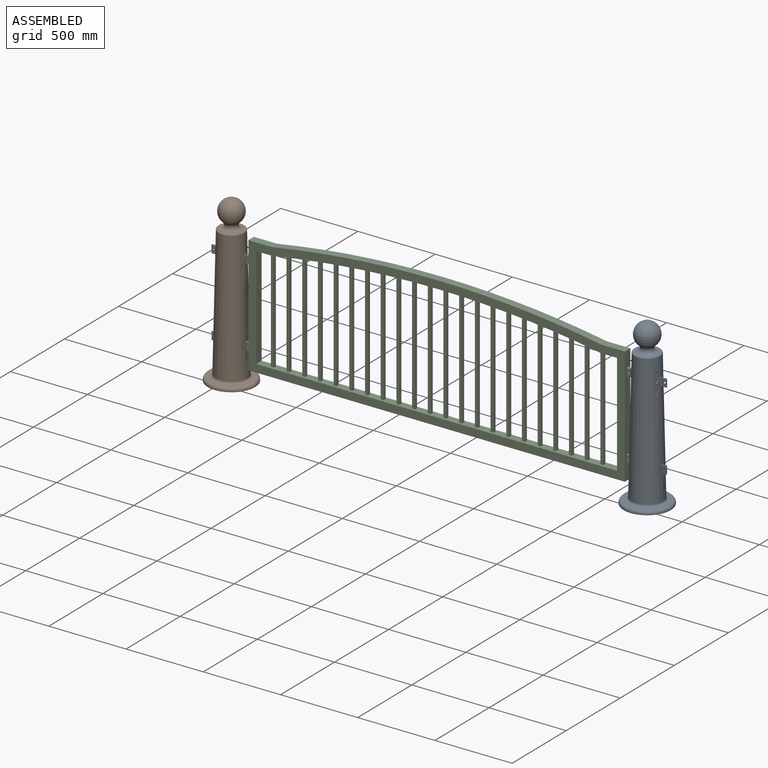
[diagram: assembled view]
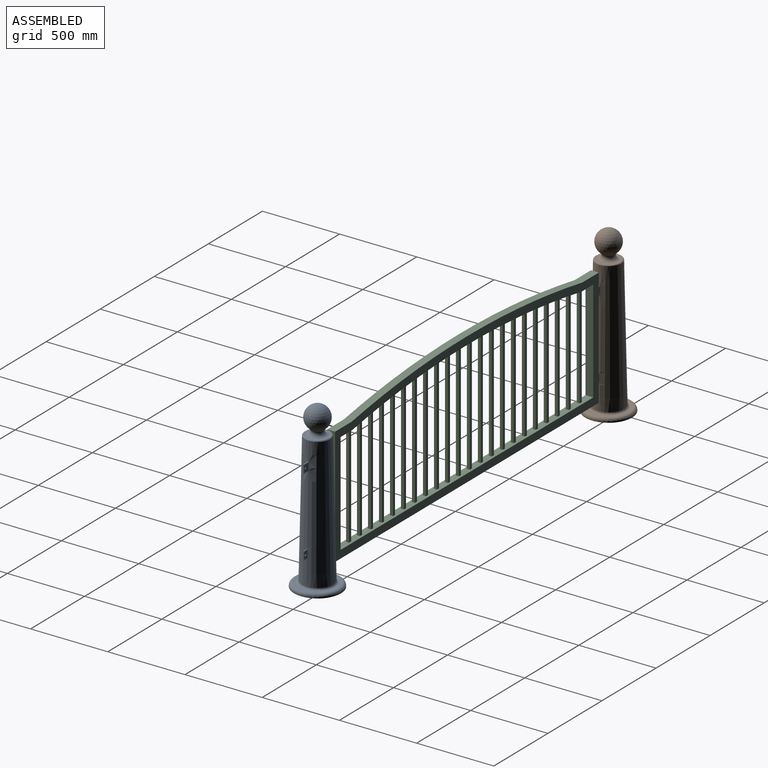
[diagram: assembled view, second angle]
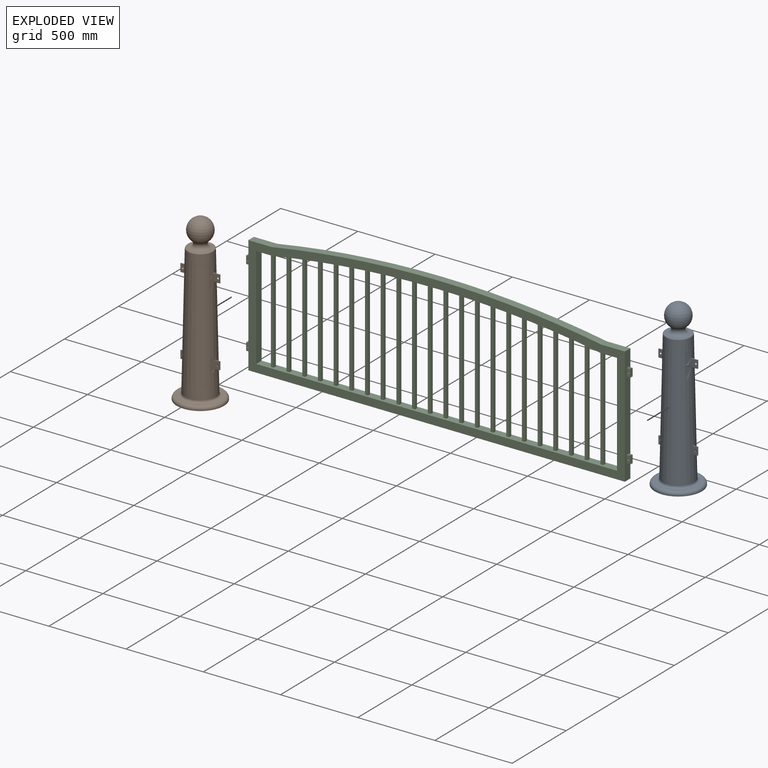
[diagram: exploded view]
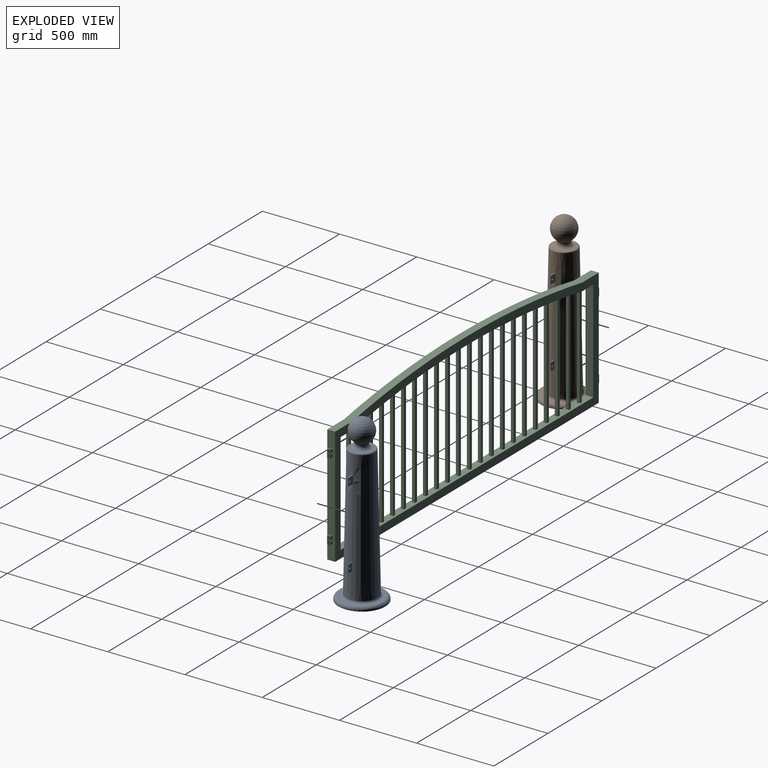
[diagram: exploded view, second angle]
ASSEMBLY  parts=3 mates=2
PART A: 35 faces, bbox 329.9x329.9x1074 mm
  f0: cone r=101.33mm half-angle=1.3deg, axis (0,0,-1), area 487300mm2, adj f8,f9,f11,f12,f14,f15,f17,f19
  f1: torus R=63.5mm, axis (0,0,-1), area 11492.2mm2, adj f2,f10
  f2: torus R=63.5mm, axis (0,0,-1), area 5539.6mm2, adj f1,f3
  f3: sphere r=76.2mm, area 64962.4mm2, adj f2
  f4: plane 304.8x304.8mm, normal (0,0,-1), area 72965.9mm2, adj f5
  f5: cylinder r=152.4mm len=304.8mm, axis (0,0,-1), area 6080.5mm2, adj f4,f6
  f6: torus R=133.35mm, axis (0,0,-1), area 27352.1mm2, adj f5,f7
  f7: plane 266.7x266.7mm, normal (0,0,1), area 15019.9mm2, adj f6,f8
  f8: torus R=114.02mm, axis (0,0,-1), area 13100.4mm2, adj f0,f7
  f9: torus R=76.34mm, axis (0,0,-1), area 4964.9mm2, adj f0,f10
  f10: plane 152.68x152.68mm, normal (0,0,1), area 5640.2mm2, adj f1,f9
  f11: plane 50.8x41.71mm, normal (0,1,0), area 1963.6mm2, adj f0,f12,f13,f14,f16
  f12: plane 41.71x6.35mm, normal (0,0,1), area 264.6mm2, adj f0,f11,f13,f15
  f13: plane 50.8x6.35mm, normal (1,0,0), area 322.6mm2, adj f11,f12,f14,f15
  f14: plane 40.59x6.35mm, normal (0,0,-1), area 257.5mm2, adj f0,f11,f13,f15
  f15: plane 50.8x41.71mm, normal (0,-1,0), area 1963.6mm2, adj f0,f12,f13,f14,f16
  f16: cylinder r=6.35mm len=12.7mm, axis (0,-1,0), area 253.4mm2, adj f11,f15
  f17: plane 30.5x6.35mm, normal (0,0,1), area 193.4mm2, adj f0,f18,f19,f20
  f18: plane 50.8x6.35mm, normal (1,0,0), area 322.6mm2, adj f17,f19,f20,f21
  f19: plane 50.8x30.5mm, normal (0,1,0), area 1394mm2, adj f0,f17,f18,f21,f22
  f20: plane 50.8x30.5mm, normal (0,-1,0), area 1394mm2, adj f0,f17,f18,f21,f22
  f21: plane 29.37x6.35mm, normal (0,0,-1), area 186.3mm2, adj f0,f18,f19,f20
  f22: cylinder r=6.35mm len=12.7mm, axis (0,-1,0), area 253.4mm2, adj f19,f20
  f23: plane 50.8x41.71mm, normal (0,1,0), area 1963.6mm2, adj f0,f24,f25,f26,f28
  f24: plane 41.71x6.35mm, normal (0,0,1), area 264.6mm2, adj f0,f23,f25,f27
  f25: plane 50.8x6.35mm, normal (-1,0,0), area 322.6mm2, adj f23,f24,f26,f27
  f26: plane 40.59x6.35mm, normal (0,0,-1), area 257.5mm2, adj f0,f23,f25,f27
  f27: plane 50.8x41.71mm, normal (0,-1,0), area 1963.6mm2, adj f0,f24,f25,f26,f28
  f28: cylinder r=6.35mm len=12.7mm, axis (0,-1,0), area 253.4mm2, adj f23,f27
  f29: plane 30.5x6.35mm, normal (0,0,1), area 193.4mm2, adj f0,f30,f31,f32
  f30: plane 50.8x6.35mm, normal (-1,0,0), area 322.6mm2, adj f29,f31,f32,f33
  f31: plane 50.8x30.5mm, normal (0,1,0), area 1394mm2, adj f0,f29,f30,f33,f34
  f32: plane 50.8x30.5mm, normal (0,-1,0), area 1394mm2, adj f0,f29,f30,f33,f34
  f33: plane 29.37x6.35mm, normal (0,0,-1), area 186.3mm2, adj f0,f30,f31,f32
  f34: cylinder r=6.35mm len=12.7mm, axis (0,-1,0), area 253.4mm2, adj f31,f32
PART B: same geometry as A
PART C: 150 faces, bbox 2489.2x50.8x854.5 mm
  f0: plane 762x50.8mm, normal (1,0,0), area 37419.3mm2, adj f7,f8,f12,f13,f126,f127,f128,f129
  f1: plane 762x50.8mm, normal (-1,0,0), area 37419.3mm2, adj f7,f10,f12,f13,f102,f103,f104,f105
  f2: cylinder r=6146.8mm len=2124.77mm, axis (0,1,0), area 100936mm2, adj f3,f11,f12,f13,f18,f19,f20,f21
  f3: plane 106.01x50.8mm, normal (0,0,-1), area 5274.6mm2, adj f2,f4,f12,f13,f98,f100,f101
  f4: plane 660.4x50.8mm, normal (-1,0,0), area 33548.3mm2, adj f3,f5,f12,f13
  f5: plane 2336.8x50.8mm, normal (0,0,1), area 110725.6mm2, adj f4,f6,f12,f13,f14,f15,f16,f17
  f6: plane 660.4x50.8mm, normal (1,0,0), area 33548.3mm2, adj f5,f11,f12,f13
  f7: plane 2438.4x50.8mm, normal (0,0,-1), area 123870.7mm2, adj f0,f1,f12,f13
  f8: plane 152.4x50.8mm, normal (0,0,1), area 7741.9mm2, adj f0,f9,f12,f13
  f9: cylinder r=6197.6mm len=2133.6mm, axis (0,1,0), area 108929.4mm2, adj f8,f10,f12,f13
  f10: plane 152.4x50.8mm, normal (0,0,1), area 7741.9mm2, adj f1,f9,f12,f13
  f11: plane 106.01x50.8mm, normal (0,0,-1), area 5022.6mm2, adj f2,f6,f12,f13,f14,f15,f16,f17
  f12: plane 2438.4x854.51mm, normal (0,-1,0), area 315381.7mm2, adj f0,f1,f2,f3,f4,f5,f6,f7
  f13: plane 2438.4x854.51mm, normal (0,1,0), area 315381.7mm2, adj f0,f1,f2,f3,f4,f5,f6,f7
  f14: plane 660.4x19.05mm, normal (0,-1,0), area 12580.6mm2, adj f5,f11,f15,f16
  f15: plane 660.4x19.05mm, normal (-1,0,0), area 12580.6mm2, adj f5,f11,f14,f17
  f16: plane 660.4x19.05mm, normal (1,0,0), area 12580.6mm2, adj f5,f11,f14,f17
  f17: plane 660.4x19.05mm, normal (0,1,0), area 12580.6mm2, adj f5,f11,f15,f16
  f18: plane 676.88x19.05mm, normal (0,-1,0), area 12865.5mm2, adj f2,f5,f19,f20
  f19: plane 676.88x19.05mm, normal (1,0,0), area 12894.5mm2, adj f2,f5,f18,f21
  f20: plane 673.82x19.05mm, normal (-1,0,0), area 12836.3mm2, adj f2,f5,f18,f21
  f21: plane 676.88x19.05mm, normal (0,1,0), area 12865.5mm2, adj f2,f5,f19,f20
  f22: plane 692.14x19.05mm, normal (0,-1,0), area 13159.3mm2, adj f2,f5,f23,f24
  f23: plane 692.14x19.05mm, normal (1,0,0), area 13185.2mm2, adj f2,f5,f22,f25
  f24: plane 689.41x19.05mm, normal (-1,0,0), area 13133.2mm2, adj f2,f5,f22,f25
  f25: plane 692.14x19.05mm, normal (0,1,0), area 13159.3mm2, adj f2,f5,f23,f24
  f26: plane 705.67x19.05mm, normal (0,-1,0), area 13420.1mm2, adj f2,f5,f27,f28
  f27: plane 705.67x19.05mm, normal (1,0,0), area 13443mm2, adj f2,f5,f26,f29
  f28: plane 703.26x19.05mm, normal (-1,0,0), area 13397.1mm2, adj f2,f5,f26,f29
  f29: plane 705.67x19.05mm, normal (0,1,0), area 13420.1mm2, adj f2,f5,f27,f28
  f30: plane 717.48x19.05mm, normal (0,-1,0), area 13648.2mm2, adj f2,f5,f31,f32
  f31: plane 717.48x19.05mm, normal (1,0,0), area 13668mm2, adj f2,f5,f30,f33
  f32: plane 715.39x19.05mm, normal (-1,0,0), area 13628.3mm2, adj f2,f5,f30,f33
  f33: plane 717.48x19.05mm, normal (0,1,0), area 13648.2mm2, adj f2,f5,f31,f32
  f34: plane 727.58x19.05mm, normal (0,-1,0), area 13843.7mm2, adj f2,f5,f35,f36
  f35: plane 727.58x19.05mm, normal (1,0,0), area 13860.4mm2, adj f2,f5,f34,f37
  f36: plane 725.82x19.05mm, normal (-1,0,0), area 13826.8mm2, adj f2,f5,f34,f37
  f37: plane 727.58x19.05mm, normal (0,1,0), area 13843.7mm2, adj f2,f5,f35,f36
  f38: plane 735.98x19.05mm, normal (0,-1,0), area 14006.8mm2, adj f2,f5,f39,f40
  f39: plane 735.98x19.05mm, normal (1,0,0), area 14020.5mm2, adj f2,f5,f38,f41
  f40: plane 734.54x19.05mm, normal (-1,0,0), area 13992.9mm2, adj f2,f5,f38,f41
  f41: plane 735.98x19.05mm, normal (0,1,0), area 14006.8mm2, adj f2,f5,f39,f40
  f42: plane 742.69x19.05mm, normal (0,-1,0), area 14137.6mm2, adj f2,f5,f43,f44
  f43: plane 742.69x19.05mm, normal (1,0,0), area 14148.3mm2, adj f2,f5,f42,f45
  f44: plane 741.56x19.05mm, normal (-1,0,0), area 14126.8mm2, adj f2,f5,f42,f45
  f45: plane 742.69x19.05mm, normal (0,1,0), area 14137.6mm2, adj f2,f5,f43,f44
  f46: plane 747.71x19.05mm, normal (0,-1,0), area 14236.3mm2, adj f2,f5,f47,f48
  f47: plane 747.71x19.05mm, normal (1,0,0), area 14243.9mm2, adj f2,f5,f46,f49
  f48: plane 746.9x19.05mm, normal (-1,0,0), area 14228.4mm2, adj f2,f5,f46,f49
  f49: plane 747.71x19.05mm, normal (0,1,0), area 14236.3mm2, adj f2,f5,f47,f48
  f50: plane 751.05x19.05mm, normal (0,-1,0), area 14302.9mm2, adj f2,f5,f51,f52
  f51: plane 751.05x19.05mm, normal (1,0,0), area 14307.5mm2, adj f2,f5,f50,f53
  f52: plane 750.55x19.05mm, normal (-1,0,0), area 14298mm2, adj f2,f5,f50,f53
  f53: plane 751.05x19.05mm, normal (0,1,0), area 14302.9mm2, adj f2,f5,f51,f52
  f54: plane 752.71x19.05mm, normal (0,-1,0), area 14337.4mm2, adj f2,f5,f55,f56
  f55: plane 752.71x19.05mm, normal (1,0,0), area 14339.1mm2, adj f2,f5,f54,f57
  f56: plane 752.52x19.05mm, normal (-1,0,0), area 14335.6mm2, adj f2,f5,f54,f57
  f57: plane 752.71x19.05mm, normal (0,1,0), area 14337.4mm2, adj f2,f5,f55,f56
  f58: plane 752.82x19.05mm, normal (0,-1,0), area 14340mm2, adj f2,f5,f59,f60
  f59: plane 752.68x19.05mm, normal (1,0,0), area 14338.6mm2, adj f2,f5,f58,f61
  f60: plane 752.82x19.05mm, normal (-1,0,0), area 14341.1mm2, adj f2,f5,f58,f61
  f61: plane 752.82x19.05mm, normal (0,1,0), area 14340mm2, adj f2,f5,f59,f60
  f62: plane 751.43x19.05mm, normal (0,-1,0), area 14310.5mm2, adj f2,f5,f63,f64
  f63: plane 750.98x19.05mm, normal (1,0,0), area 14306.2mm2, adj f2,f5,f62,f65
  f64: plane 751.43x19.05mm, normal (-1,0,0), area 14314.7mm2, adj f2,f5,f62,f65
  f65: plane 751.43x19.05mm, normal (0,1,0), area 14310.5mm2, adj f2,f5,f63,f64
  f66: plane 748.36x19.05mm, normal (0,-1,0), area 14249.1mm2, adj f2,f5,f67,f68
  f67: plane 747.6x19.05mm, normal (1,0,0), area 14241.7mm2, adj f2,f5,f66,f69
  f68: plane 748.36x19.05mm, normal (-1,0,0), area 14256.2mm2, adj f2,f5,f66,f69
  f69: plane 748.36x19.05mm, normal (0,1,0), area 14249.1mm2, adj f2,f5,f67,f68
  f70: plane 743.61x19.05mm, normal (0,-1,0), area 14155.5mm2, adj f2,f5,f71,f72
  f71: plane 742.53x19.05mm, normal (1,0,0), area 14145.2mm2, adj f2,f5,f70,f73
  f72: plane 743.61x19.05mm, normal (-1,0,0), area 14165.7mm2, adj f2,f5,f70,f73
  f73: plane 743.61x19.05mm, normal (0,1,0), area 14155.5mm2, adj f2,f5,f71,f72
  f74: plane 737.17x19.05mm, normal (0,-1,0), area 14029.9mm2, adj f2,f5,f75,f76
  f75: plane 735.77x19.05mm, normal (1,0,0), area 14016.5mm2, adj f2,f5,f74,f77
  f76: plane 737.17x19.05mm, normal (-1,0,0), area 14043.1mm2, adj f2,f5,f74,f77
  f77: plane 737.17x19.05mm, normal (0,1,0), area 14029.9mm2, adj f2,f5,f75,f76
  f78: plane 729.04x19.05mm, normal (0,-1,0), area 13871.9mm2, adj f2,f5,f79,f80
  f79: plane 727.32x19.05mm, normal (1,0,0), area 13855.5mm2, adj f2,f5,f78,f81
  f80: plane 729.04x19.05mm, normal (-1,0,0), area 13888.2mm2, adj f2,f5,f78,f81
  f81: plane 729.04x19.05mm, normal (0,1,0), area 13871.9mm2, adj f2,f5,f79,f80
  f82: plane 719.21x19.05mm, normal (0,-1,0), area 13681.6mm2, adj f2,f5,f83,f84
  f83: plane 717.17x19.05mm, normal (1,0,0), area 13662.2mm2, adj f2,f5,f82,f85
  f84: plane 719.21x19.05mm, normal (-1,0,0), area 13700.9mm2, adj f2,f5,f82,f85
  f85: plane 719.21x19.05mm, normal (0,1,0), area 13681.6mm2, adj f2,f5,f83,f84
  f86: plane 707.67x19.05mm, normal (0,-1,0), area 13458.8mm2, adj f2,f5,f87,f88
  f87: plane 705.31x19.05mm, normal (1,0,0), area 13436.2mm2, adj f2,f5,f86,f89
  f88: plane 707.67x19.05mm, normal (-1,0,0), area 13481.1mm2, adj f2,f5,f86,f89
  f89: plane 707.67x19.05mm, normal (0,1,0), area 13458.8mm2, adj f2,f5,f87,f88
  f90: plane 694.41x19.05mm, normal (0,-1,0), area 13203.2mm2, adj f2,f5,f91,f92
  f91: plane 691.74x19.05mm, normal (1,0,0), area 13177.6mm2, adj f2,f5,f90,f93
  f92: plane 694.41x19.05mm, normal (-1,0,0), area 13228.6mm2, adj f2,f5,f90,f93
  f93: plane 694.41x19.05mm, normal (0,1,0), area 13203.2mm2, adj f2,f5,f91,f92
  f94: plane 679.43x19.05mm, normal (0,-1,0), area 12914.6mm2, adj f2,f5,f95,f96
  f95: plane 676.43x19.05mm, normal (1,0,0), area 12885.9mm2, adj f2,f5,f94,f97
  f96: plane 679.43x19.05mm, normal (-1,0,0), area 12943.2mm2, adj f2,f5,f94,f97
  f97: plane 679.43x19.05mm, normal (0,1,0), area 12914.6mm2, adj f2,f5,f95,f96
  f98: plane 662.71x19.05mm, normal (0,-1,0), area 12595.9mm2, adj f2,f3,f5,f99,f100
  f99: plane 662.71x19.05mm, normal (-1,0,0), area 12624.5mm2, adj f2,f5,f98,f101
  f100: plane 660.4x19.05mm, normal (1,0,0), area 12580.6mm2, adj f3,f5,f98,f101
  f101: plane 662.71x19.05mm, normal (0,1,0), area 12595.9mm2, adj f2,f3,f5,f99,f100
  f102: plane 25.4x6.35mm, normal (0,0,1), area 161.3mm2, adj f1,f103,f105,f106
  f103: plane 50.8x25.4mm, normal (0,1,0), area 1163.6mm2, adj f1,f102,f104,f106,f107
  f104: plane 25.4x6.35mm, normal (0,0,-1), area 161.3mm2, adj f1,f103,f105,f106
  f105: plane 50.8x25.4mm, normal (0,-1,0), area 1163.6mm2, adj f1,f102,f104,f106,f107
  f106: plane 50.8x6.35mm, normal (-1,0,0), area 322.6mm2, adj f102,f103,f104,f105
  f107: cylinder r=6.35mm len=12.7mm, axis (0,-1,0), area 253.4mm2, adj f103,f105
  f108: plane 50.8x25.4mm, normal (0,-1,0), area 1163.6mm2, adj f1,f109,f111,f112,f113
  f109: plane 25.4x6.35mm, normal (0,0,1), area 161.3mm2, adj f1,f108,f110,f112
  f110: plane 50.8x25.4mm, normal (0,1,0), area 1163.6mm2, adj f1,f109,f111,f112,f113
  f111: plane 25.4x6.35mm, normal (0,0,-1), area 161.3mm2, adj f1,f108,f110,f112
  f112: plane 50.8x6.35mm, normal (-1,0,0), area 322.6mm2, adj f108,f109,f110,f111
  f113: cylinder r=6.35mm len=12.7mm, axis (0,-1,0), area 253.4mm2, adj f108,f110
  f114: plane 50.8x25.4mm, normal (0,1,0), area 1163.6mm2, adj f1,f115,f117,f118,f119
  f115: plane 25.4x6.35mm, normal (0,0,-1), area 161.3mm2, adj f1,f114,f116,f118
  f116: plane 50.8x25.4mm, normal (0,-1,0), area 1163.6mm2, adj f1,f115,f117,f118,f119
  f117: plane 25.4x6.35mm, normal (0,0,1), area 161.3mm2, adj f1,f114,f116,f118
  f118: plane 50.8x6.35mm, normal (-1,0,0), area 322.6mm2, adj f114,f115,f116,f117
  f119: cylinder r=6.35mm len=12.7mm, axis (0,-1,0), area 253.4mm2, adj f114,f116
  f120: plane 50.8x25.4mm, normal (0,-1,0), area 1163.6mm2, adj f1,f121,f123,f124,f125
  f121: plane 25.4x6.35mm, normal (0,0,1), area 161.3mm2, adj f1,f120,f122,f124
  f122: plane 50.8x25.4mm, normal (0,1,0), area 1163.6mm2, adj f1,f121,f123,f124,f125
  f123: plane 25.4x6.35mm, normal (0,0,-1), area 161.3mm2, adj f1,f120,f122,f124
  f124: plane 50.8x6.35mm, normal (-1,0,0), area 322.6mm2, adj f120,f121,f122,f123
  f125: cylinder r=6.35mm len=12.7mm, axis (0,-1,0), area 253.4mm2, adj f120,f122
  f126: plane 25.4x6.35mm, normal (0,0,1), area 161.3mm2, adj f0,f127,f129,f130
  f127: plane 50.8x25.4mm, normal (0,1,0), area 1163.6mm2, adj f0,f126,f128,f130,f131
  f128: plane 25.4x6.35mm, normal (0,0,-1), area 161.3mm2, adj f0,f127,f129,f130
  f129: plane 50.8x25.4mm, normal (0,-1,0), area 1163.6mm2, adj f0,f126,f128,f130,f131
  f130: plane 50.8x6.35mm, normal (1,0,0), area 322.6mm2, adj f126,f127,f128,f129
  f131: cylinder r=6.35mm len=12.7mm, axis (0,-1,0), area 253.4mm2, adj f127,f129
  f132: plane 50.8x25.4mm, normal (0,-1,0), area 1163.6mm2, adj f0,f133,f135,f136,f137
  f133: plane 25.4x6.35mm, normal (0,0,1), area 161.3mm2, adj f0,f132,f134,f136
  f134: plane 50.8x25.4mm, normal (0,1,0), area 1163.6mm2, adj f0,f133,f135,f136,f137
  f135: plane 25.4x6.35mm, normal (0,0,-1), area 161.3mm2, adj f0,f132,f134,f136
  f136: plane 50.8x6.35mm, normal (1,0,0), area 322.6mm2, adj f132,f133,f134,f135
  f137: cylinder r=6.35mm len=12.7mm, axis (0,-1,0), area 253.4mm2, adj f132,f134
  f138: plane 50.8x25.4mm, normal (0,1,0), area 1163.6mm2, adj f0,f139,f141,f142,f143
  f139: plane 25.4x6.35mm, normal (0,0,-1), area 161.3mm2, adj f0,f138,f140,f142
  f140: plane 50.8x25.4mm, normal (0,-1,0), area 1163.6mm2, adj f0,f139,f141,f142,f143
  f141: plane 25.4x6.35mm, normal (0,0,1), area 161.3mm2, adj f0,f138,f140,f142
  f142: plane 50.8x6.35mm, normal (1,0,0), area 322.6mm2, adj f138,f139,f140,f141
  f143: cylinder r=6.35mm len=12.7mm, axis (0,-1,0), area 253.4mm2, adj f138,f140
  f144: plane 50.8x25.4mm, normal (0,-1,0), area 1163.6mm2, adj f0,f145,f147,f148,f149
  f145: plane 25.4x6.35mm, normal (0,0,1), area 161.3mm2, adj f0,f144,f146,f148
  f146: plane 50.8x25.4mm, normal (0,1,0), area 1163.6mm2, adj f0,f145,f147,f148,f149
  f147: plane 25.4x6.35mm, normal (0,0,-1), area 161.3mm2, adj f0,f144,f146,f148
  f148: plane 50.8x6.35mm, normal (1,0,0), area 322.6mm2, adj f144,f145,f146,f147
  f149: cylinder r=6.35mm len=12.7mm, axis (0,-1,0), area 253.4mm2, adj f144,f146
PLACE A rot(axis=(0,0,1),180deg) t=(1274.36,0,-381.13)mm
PLACE B t=(-1418.04,0,-381.13)mm
PLACE C t=(-1291.04,0,-279.53)mm
MATE cylindrical A.f16 <-> C.f131  axis (0,-1,0) through (1160.06,-3.17,355.47)mm
MATE cylindrical B.f16 <-> C.f107  axis (0,-1,0) through (-1303.74,-3.17,355.47)mm
